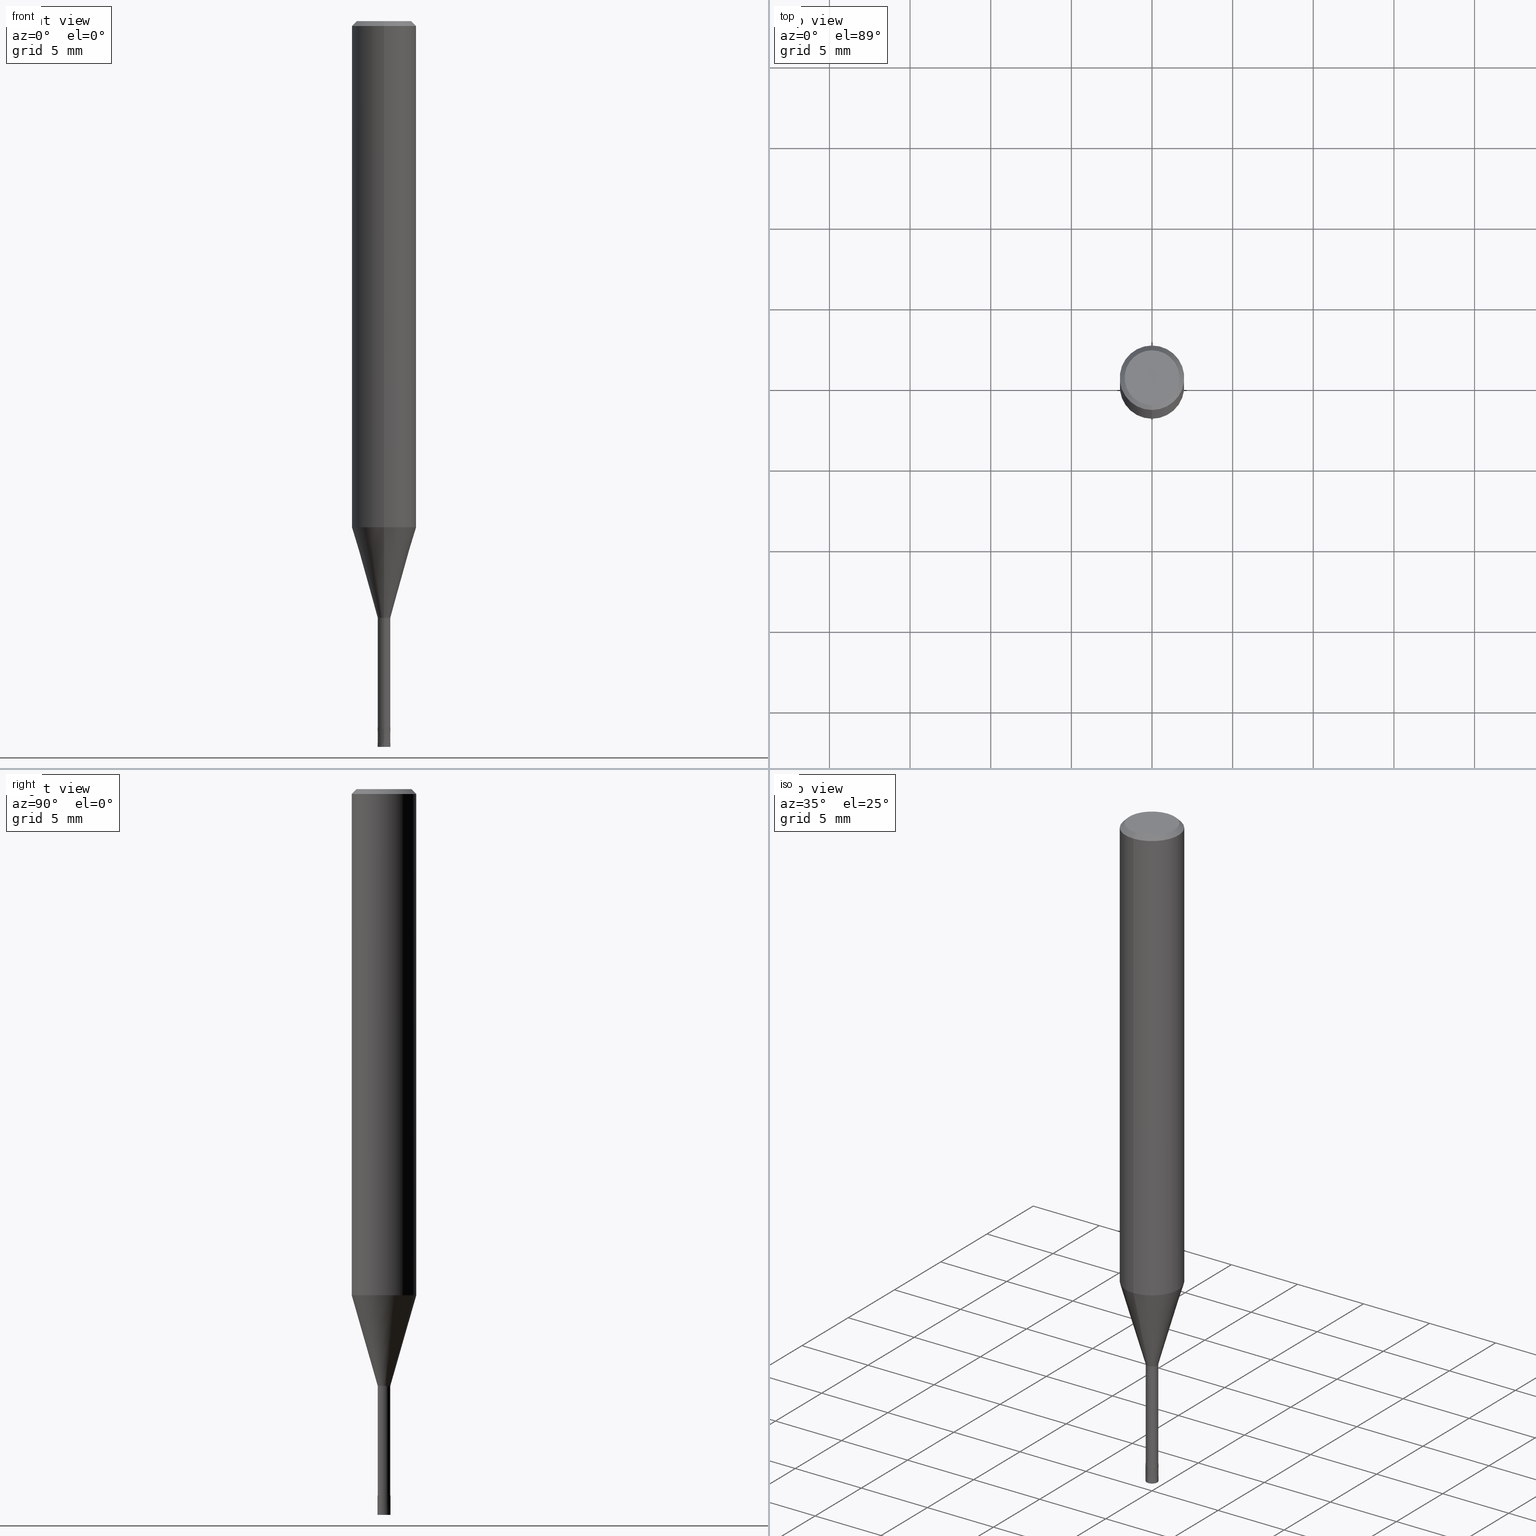
[diagram: canonical four-view strip — front | top / right | iso, engineering-drawing reading convention]
A machine part, canonical four-view strip (front | top / right | iso — engineering-drawing reading convention). The complete STEP part file that produces these views, byte-faithful:
ISO-10303-21;
HEADER;
FILE_DESCRIPTION(('no description'),'unknown implementation level');
FILE_NAME('HLS2008-080-Huellk.stp','  ',('CIMSOURCE GmbH'),('CADClick - KiM GmbH - www.kimweb.de'),'unknown preprocess','ACIS','unknown authorization');
FILE_SCHEMA(('automotive_design'));
ENDSEC;
DATA;
#1=MECHANICAL_DESIGN_GEOMETRIC_PRESENTATION_REPRESENTATION(' ',(#14,#15,#16,#17,#18,#19,#20,#21,#22,#23,#24,#25,#26,#27,#28,#29,#30,#31,#32,#33,#34,#35,#36,#37,#38,#39,#40,#41,#42,#43,#44,#45,#46,#47,#48,#49,#50,#51,#52,#53,#54,#55,#56,#57,#58,#59,#60,#61,#62,#63,#64,#65,#66,#67,#68,#69,#70,#71,#72),#10);
#2=PRODUCT_DEFINITION_CONTEXT('',#73,'design');
#3=APPLICATION_PROTOCOL_DEFINITION('INTERNATIONAL STANDARD','automotive_design',1994,#73);
#4=PRODUCT_CATEGORY_RELATIONSHIP('NONE','NONE',#74,#75);
#5=SHAPE_DEFINITION_REPRESENTATION(#76,#77);
#6=PRODUCT_DEFINITION_CONTEXT('',#78,'design');
#7=APPLICATION_PROTOCOL_DEFINITION('INTERNATIONAL STANDARD','automotive_design',1994,#78);
#8=PRODUCT_CATEGORY_RELATIONSHIP('NONE','NONE',#79,#80);
#9=SHAPE_DEFINITION_REPRESENTATION(#81,#82);
#10= (GEOMETRIC_REPRESENTATION_CONTEXT(3)GLOBAL_UNCERTAINTY_ASSIGNED_CONTEXT((#85))GLOBAL_UNIT_ASSIGNED_CONTEXT((#87,#88,#89))REPRESENTATION_CONTEXT('NONE','WORKSPACE'));
#14=STYLED_ITEM('',(#91),#92);
#15=STYLED_ITEM('',(#93),#94);
#16=STYLED_ITEM('',(#95),#96);
#17=STYLED_ITEM('',(#97),#98);
#18=STYLED_ITEM('',(#99),#100);
#19=STYLED_ITEM('',(#101),#102);
#20=STYLED_ITEM('',(#103),#104);
#21=STYLED_ITEM('',(#105),#106);
#22=STYLED_ITEM('',(#107),#108);
#23=STYLED_ITEM('',(#109),#110);
#24=STYLED_ITEM('',(#111),#112);
#25=STYLED_ITEM('',(#113),#114);
#26=STYLED_ITEM('',(#115),#116);
#27=STYLED_ITEM('',(#117),#118);
#28=STYLED_ITEM('',(#119),#120);
#29=STYLED_ITEM('',(#121),#122);
#30=STYLED_ITEM('',(#123),#124);
#31=STYLED_ITEM('',(#125),#126);
#32=STYLED_ITEM('',(#127),#128);
#33=STYLED_ITEM('',(#129),#130);
#34=STYLED_ITEM('',(#131),#132);
#35=STYLED_ITEM('',(#133),#134);
#36=STYLED_ITEM('',(#135),#136);
#37=STYLED_ITEM('',(#137),#138);
#38=STYLED_ITEM('',(#139),#140);
#39=STYLED_ITEM('',(#141),#142);
#40=STYLED_ITEM('',(#143),#144);
#41=STYLED_ITEM('',(#145),#146);
#42=STYLED_ITEM('',(#147),#148);
#43=STYLED_ITEM('',(#149),#150);
#44=STYLED_ITEM('',(#151),#152);
#45=STYLED_ITEM('',(#153),#154);
#46=STYLED_ITEM('',(#155),#156);
#47=STYLED_ITEM('',(#157),#158);
#48=STYLED_ITEM('',(#159),#160);
#49=STYLED_ITEM('',(#161),#162);
#50=STYLED_ITEM('',(#163),#164);
#51=STYLED_ITEM('',(#165),#166);
#52=STYLED_ITEM('',(#167),#168);
#53=STYLED_ITEM('',(#169),#170);
#54=STYLED_ITEM('',(#171),#172);
#55=STYLED_ITEM('',(#173),#174);
#56=STYLED_ITEM('',(#175),#176);
#57=STYLED_ITEM('',(#177),#178);
#58=STYLED_ITEM('',(#179),#180);
#59=STYLED_ITEM('',(#181),#182);
#60=STYLED_ITEM('',(#183),#184);
#61=STYLED_ITEM('',(#185),#186);
#62=STYLED_ITEM('',(#187),#188);
#63=STYLED_ITEM('',(#189),#190);
#64=STYLED_ITEM('',(#191),#192);
#65=STYLED_ITEM('',(#193),#194);
#66=STYLED_ITEM('',(#195),#196);
#67=STYLED_ITEM('',(#197),#198);
#68=STYLED_ITEM('',(#199),#200);
#69=STYLED_ITEM('',(#201),#202);
#70=STYLED_ITEM('',(#203),#204);
#71=STYLED_ITEM('',(#205),#206);
#72=STYLED_ITEM('',(#207),#208);
#73=APPLICATION_CONTEXT(' ');
#74=PRODUCT_CATEGORY('part','NONE');
#75=PRODUCT_RELATED_PRODUCT_CATEGORY('detail',' ',(#209));
#76=PRODUCT_DEFINITION_SHAPE('NONE','NONE',#210);
#77=ADVANCED_BREP_SHAPE_REPRESENTATION('1',(#92,#211),#10);
#78=APPLICATION_CONTEXT(' ');
#79=PRODUCT_CATEGORY('part','NONE');
#80=PRODUCT_RELATED_PRODUCT_CATEGORY('detail',' ',(#212));
#81=PRODUCT_DEFINITION_SHAPE('NONE','NONE',#213);
#82=ADVANCED_BREP_SHAPE_REPRESENTATION('2',(#172,#214),#10);
#85=UNCERTAINTY_MEASURE_WITH_UNIT(LENGTH_MEASURE(1.0E-006),#87,'','');
#87= (CONVERSION_BASED_UNIT('MILLIMETRE',#217)LENGTH_UNIT()NAMED_UNIT(#220));
#88= (NAMED_UNIT(#222)PLANE_ANGLE_UNIT()SI_UNIT($,.RADIAN.));
#89= (NAMED_UNIT(#222)SOLID_ANGLE_UNIT()SI_UNIT($,.STERADIAN.));
#91=PRESENTATION_STYLE_ASSIGNMENT((#228));
#92=MANIFOLD_SOLID_BREP('1',#229);
#93=PRESENTATION_STYLE_ASSIGNMENT((#230));
#94=EDGE_CURVE('',#102,#186,#231,.T.);
#95=PRESENTATION_STYLE_ASSIGNMENT((#232));
#96=ADVANCED_FACE('',(#233),#234,.T.);
#97=PRESENTATION_STYLE_ASSIGNMENT((#235));
#98=VERTEX_POINT('',#236);
#99=PRESENTATION_STYLE_ASSIGNMENT((#237));
#100=VERTEX_POINT('',#238);
#101=PRESENTATION_STYLE_ASSIGNMENT((#239));
#102=VERTEX_POINT('',#240);
#103=PRESENTATION_STYLE_ASSIGNMENT((#241));
#104=VERTEX_POINT('',#242);
#105=PRESENTATION_STYLE_ASSIGNMENT((#243));
#106=EDGE_CURVE('',#102,#140,#244,.T.);
#107=PRESENTATION_STYLE_ASSIGNMENT((#245));
#108=ADVANCED_FACE('',(#246),#247,.T.);
#109=PRESENTATION_STYLE_ASSIGNMENT((#248));
#110=VERTEX_POINT('',#249);
#111=PRESENTATION_STYLE_ASSIGNMENT((#250));
#112=ADVANCED_FACE('',(#251),#252,.T.);
#113=PRESENTATION_STYLE_ASSIGNMENT((#253));
#114=EDGE_CURVE('',#124,#170,#254,.T.);
#115=PRESENTATION_STYLE_ASSIGNMENT((#255));
#116=ADVANCED_FACE('',(#256),#257,.T.);
#117=PRESENTATION_STYLE_ASSIGNMENT((#258));
#118=EDGE_CURVE('',#206,#204,#259,.T.);
#119=PRESENTATION_STYLE_ASSIGNMENT((#260));
#120=EDGE_CURVE('',#148,#104,#261,.T.);
#121=PRESENTATION_STYLE_ASSIGNMENT((#262));
#122=EDGE_CURVE('',#204,#126,#263,.T.);
#123=PRESENTATION_STYLE_ASSIGNMENT((#264));
#124=VERTEX_POINT('',#265);
#125=PRESENTATION_STYLE_ASSIGNMENT((#266));
#126=VERTEX_POINT('',#267);
#127=PRESENTATION_STYLE_ASSIGNMENT((#268));
#128=ADVANCED_FACE('',(#269),#270,.T.);
#129=PRESENTATION_STYLE_ASSIGNMENT((#271));
#130=EDGE_CURVE('',#196,#156,#272,.T.);
#131=PRESENTATION_STYLE_ASSIGNMENT((#273));
#132=EDGE_CURVE('',#170,#124,#274,.T.);
#133=PRESENTATION_STYLE_ASSIGNMENT((#275));
#134=EDGE_CURVE('',#140,#148,#276,.T.);
#135=PRESENTATION_STYLE_ASSIGNMENT((#277));
#136=EDGE_CURVE('',#126,#194,#278,.T.);
#137=PRESENTATION_STYLE_ASSIGNMENT((#279));
#138=EDGE_CURVE('',#194,#206,#280,.T.);
#139=PRESENTATION_STYLE_ASSIGNMENT((#281));
#140=VERTEX_POINT('',#282);
#141=PRESENTATION_STYLE_ASSIGNMENT((#283));
#142=EDGE_CURVE('',#206,#194,#284,.T.);
#143=PRESENTATION_STYLE_ASSIGNMENT((#285));
#144=ADVANCED_FACE('',(#286),#287,.T.);
#145=PRESENTATION_STYLE_ASSIGNMENT((#288));
#146=ADVANCED_FACE('',(#289),#290,.T.);
#147=PRESENTATION_STYLE_ASSIGNMENT((#291));
#148=VERTEX_POINT('',#292);
#149=PRESENTATION_STYLE_ASSIGNMENT((#293));
#150=EDGE_CURVE('',#104,#148,#294,.T.);
#151=PRESENTATION_STYLE_ASSIGNMENT((#295));
#152=ADVANCED_FACE('',(#296),#297,.T.);
#153=PRESENTATION_STYLE_ASSIGNMENT((#298));
#154=ADVANCED_FACE('',(#299),#300,.T.);
#155=PRESENTATION_STYLE_ASSIGNMENT((#301));
#156=VERTEX_POINT('',#302);
#157=PRESENTATION_STYLE_ASSIGNMENT((#303));
#158=EDGE_CURVE('',#204,#156,#304,.T.);
#159=PRESENTATION_STYLE_ASSIGNMENT((#305));
#160=EDGE_CURVE('',#104,#98,#306,.T.);
#161=PRESENTATION_STYLE_ASSIGNMENT((#307));
#162=ADVANCED_FACE('',(#308),#309,.T.);
#163=PRESENTATION_STYLE_ASSIGNMENT((#310));
#164=EDGE_CURVE('',#156,#196,#311,.T.);
#165=PRESENTATION_STYLE_ASSIGNMENT((#312));
#166=EDGE_CURVE('',#186,#102,#313,.T.);
#167=PRESENTATION_STYLE_ASSIGNMENT((#314));
#168=ADVANCED_FACE('',(#315),#316,.T.);
#169=PRESENTATION_STYLE_ASSIGNMENT((#317));
#170=VERTEX_POINT('',#318);
#171=PRESENTATION_STYLE_ASSIGNMENT((#319));
#172=MANIFOLD_SOLID_BREP('2',#320);
#173=PRESENTATION_STYLE_ASSIGNMENT((#321));
#174=EDGE_CURVE('',#126,#204,#322,.T.);
#175=PRESENTATION_STYLE_ASSIGNMENT((#323));
#176=EDGE_CURVE('',#100,#110,#324,.T.);
#177=PRESENTATION_STYLE_ASSIGNMENT((#325));
#178=ADVANCED_FACE('',(#326,#327),#328,.T.);
#179=PRESENTATION_STYLE_ASSIGNMENT((#329));
#180=EDGE_CURVE('',#110,#100,#330,.T.);
#181=PRESENTATION_STYLE_ASSIGNMENT((#331));
#182=ADVANCED_FACE('',(#332),#333,.T.);
#183=PRESENTATION_STYLE_ASSIGNMENT((#334));
#184=EDGE_CURVE('',#98,#140,#335,.T.);
#185=PRESENTATION_STYLE_ASSIGNMENT((#336));
#186=VERTEX_POINT('',#337);
#187=PRESENTATION_STYLE_ASSIGNMENT((#338));
#188=ADVANCED_FACE('',(#339),#340,.T.);
#189=PRESENTATION_STYLE_ASSIGNMENT((#341));
#190=EDGE_CURVE('',#196,#126,#342,.T.);
#191=PRESENTATION_STYLE_ASSIGNMENT((#343));
#192=EDGE_CURVE('',#98,#186,#344,.T.);
#193=PRESENTATION_STYLE_ASSIGNMENT((#345));
#194=VERTEX_POINT('',#346);
#195=PRESENTATION_STYLE_ASSIGNMENT((#347));
#196=VERTEX_POINT('',#348);
#197=PRESENTATION_STYLE_ASSIGNMENT((#349));
#198=ADVANCED_FACE('',(#350),#351,.T.);
#199=PRESENTATION_STYLE_ASSIGNMENT((#352));
#200=EDGE_CURVE('',#124,#110,#353,.T.);
#201=PRESENTATION_STYLE_ASSIGNMENT((#354));
#202=EDGE_CURVE('',#100,#170,#355,.T.);
#203=PRESENTATION_STYLE_ASSIGNMENT((#356));
#204=VERTEX_POINT('',#357);
#205=PRESENTATION_STYLE_ASSIGNMENT((#358));
#206=VERTEX_POINT('',#359);
#207=PRESENTATION_STYLE_ASSIGNMENT((#360));
#208=EDGE_CURVE('',#140,#98,#361,.T.);
#209=PRODUCT('1','1','PART-1-DESC',(#362));
#210=PRODUCT_DEFINITION('NONE','NONE',#363,#2);
#211=AXIS2_PLACEMENT_3D('',#364,#365,#366);
#212=PRODUCT('2','2','PART-2-DESC',(#367));
#213=PRODUCT_DEFINITION('NONE','NONE',#368,#6);
#214=AXIS2_PLACEMENT_3D('',#369,#370,#371);
#217=LENGTH_MEASURE_WITH_UNIT(LENGTH_MEASURE(1.0),#372);
#220=DIMENSIONAL_EXPONENTS(1.0,0.0,0.0,0.0,0.0,0.0,0.0);
#222=DIMENSIONAL_EXPONENTS(0.0,0.0,0.0,0.0,0.0,0.0,0.0);
#228=SURFACE_STYLE_USAGE(.BOTH.,#373);
#229=CLOSED_SHELL('',(#108,#198,#152,#144,#178,#182,#128,#112,#116,#188,#162));
#230=CURVE_STYLE('',#374,POSITIVE_LENGTH_MEASURE(1.0E-006),#375);
#231=CIRCLE('',#376,0.38995);
#232=SURFACE_STYLE_USAGE(.BOTH.,#377);
#233=FACE_OUTER_BOUND('',#378,.T.);
#234=PLANE('',#379);
#235=POINT_STYLE(' ',#380,POSITIVE_LENGTH_MEASURE(1.0E-006),#381);
#236=CARTESIAN_POINT('',(0.0,0.38995,-37.0));
#237=POINT_STYLE(' ',#382,POSITIVE_LENGTH_MEASURE(1.0E-006),#383);
#238=CARTESIAN_POINT('',(0.0,0.3999,-43.8));
#239=POINT_STYLE(' ',#384,POSITIVE_LENGTH_MEASURE(1.0E-006),#385);
#240=CARTESIAN_POINT('',(4.77535247673036E-017,-0.38995,-43.8));
#241=POINT_STYLE(' ',#386,POSITIVE_LENGTH_MEASURE(1.0E-006),#387);
#242=CARTESIAN_POINT('',(0.0,1.99995,-31.385));
#243=CURVE_STYLE('',#388,POSITIVE_LENGTH_MEASURE(1.0E-006),#389);
#244=LINE('',#390,#391);
#245=SURFACE_STYLE_USAGE(.BOTH.,#392);
#246=FACE_OUTER_BOUND('',#393,.T.);
#247=CYLINDRICAL_SURFACE('',#394,0.38995);
#248=POINT_STYLE(' ',#395,POSITIVE_LENGTH_MEASURE(1.0E-006),#396);
#249=CARTESIAN_POINT('',(4.89720080893569E-017,-0.3999,-43.8));
#250=SURFACE_STYLE_USAGE(.BOTH.,#397);
#251=FACE_OUTER_BOUND('',#398,.T.);
#252=CYLINDRICAL_SURFACE('',#399,2.0);
#253=CURVE_STYLE('',#400,POSITIVE_LENGTH_MEASURE(1.0E-006),#401);
#254=CIRCLE('',#402,0.4);
#255=SURFACE_STYLE_USAGE(.BOTH.,#403);
#256=FACE_OUTER_BOUND('',#404,.T.);
#257=CONICAL_SURFACE('',#405,1.19495,0.279240281890545);
#258=CURVE_STYLE('',#406,POSITIVE_LENGTH_MEASURE(1.0E-006),#407);
#259=LINE('',#408,#409);
#260=CURVE_STYLE('',#410,POSITIVE_LENGTH_MEASURE(1.0E-006),#411);
#261=CIRCLE('',#412,1.99995);
#262=CURVE_STYLE('',#413,POSITIVE_LENGTH_MEASURE(1.0E-006),#414);
#263=CIRCLE('',#415,2.0);
#264=POINT_STYLE(' ',#416,POSITIVE_LENGTH_MEASURE(1.0E-006),#417);
#265=CARTESIAN_POINT('',(4.89842541528951E-017,-0.4,-45.0));
#266=POINT_STYLE(' ',#418,POSITIVE_LENGTH_MEASURE(1.0E-006),#419);
#267=CARTESIAN_POINT('',(0.0,2.0,-0.300000000000001));
#268=SURFACE_STYLE_USAGE(.BOTH.,#420);
#269=FACE_OUTER_BOUND('',#421,.T.);
#270=CONICAL_SURFACE('',#422,1.85,0.785398163397447);
#271=CURVE_STYLE('',#423,POSITIVE_LENGTH_MEASURE(1.0E-006),#424);
#272=CIRCLE('',#425,1.7);
#273=CURVE_STYLE('',#426,POSITIVE_LENGTH_MEASURE(1.0E-006),#427);
#274=CIRCLE('',#428,0.4);
#275=CURVE_STYLE('',#429,POSITIVE_LENGTH_MEASURE(1.0E-006),#430);
#276=LINE('',#431,#432);
#277=CURVE_STYLE('',#433,POSITIVE_LENGTH_MEASURE(1.0E-006),#434);
#278=LINE('',#435,#436);
#279=CURVE_STYLE('',#437,POSITIVE_LENGTH_MEASURE(1.0E-006),#438);
#280=CIRCLE('',#439,2.0);
#281=POINT_STYLE(' ',#440,POSITIVE_LENGTH_MEASURE(1.0E-006),#441);
#282=CARTESIAN_POINT('',(4.77535247673036E-017,-0.38995,-37.0));
#283=CURVE_STYLE('',#442,POSITIVE_LENGTH_MEASURE(1.0E-006),#443);
#284=CIRCLE('',#444,2.0);
#285=SURFACE_STYLE_USAGE(.BOTH.,#445);
#286=FACE_OUTER_BOUND('',#446,.T.);
#287=CONICAL_SURFACE('',#447,1.85,0.785398163397447);
#288=SURFACE_STYLE_USAGE(.BOTH.,#448);
#289=FACE_OUTER_BOUND('',#449,.T.);
#290=CONICAL_SURFACE('',#450,0.39995,8.33333331404692E-005);
#291=POINT_STYLE(' ',#451,POSITIVE_LENGTH_MEASURE(1.0E-006),#452);
#292=CARTESIAN_POINT('',(2.44915147732706E-016,-1.99995,-31.385));
#293=CURVE_STYLE('',#453,POSITIVE_LENGTH_MEASURE(1.0E-006),#454);
#294=CIRCLE('',#455,1.99995);
#295=SURFACE_STYLE_USAGE(.BOTH.,#456);
#296=FACE_OUTER_BOUND('',#457,.T.);
#297=CYLINDRICAL_SURFACE('',#458,2.0);
#298=SURFACE_STYLE_USAGE(.BOTH.,#459);
#299=FACE_OUTER_BOUND('',#460,.T.);
#300=CONICAL_SURFACE('',#461,0.39995,8.33333331404692E-005);
#301=POINT_STYLE(' ',#462,POSITIVE_LENGTH_MEASURE(1.0E-006),#463);
#302=CARTESIAN_POINT('',(2.08183080149804E-016,-1.7,0.0));
#303=CURVE_STYLE('',#464,POSITIVE_LENGTH_MEASURE(1.0E-006),#465);
#304=LINE('',#466,#467);
#305=CURVE_STYLE('',#468,POSITIVE_LENGTH_MEASURE(1.0E-006),#469);
#306=LINE('',#470,#471);
#307=SURFACE_STYLE_USAGE(.BOTH.,#472);
#308=FACE_OUTER_BOUND('',#473,.T.);
#309=PLANE('',#474);
#310=CURVE_STYLE('',#475,POSITIVE_LENGTH_MEASURE(1.0E-006),#476);
#311=CIRCLE('',#477,1.7);
#312=CURVE_STYLE('',#478,POSITIVE_LENGTH_MEASURE(1.0E-006),#479);
#313=CIRCLE('',#480,0.38995);
#314=SURFACE_STYLE_USAGE(.BOTH.,#481);
#315=FACE_OUTER_BOUND('',#482,.T.);
#316=PLANE('',#483);
#317=POINT_STYLE(' ',#484,POSITIVE_LENGTH_MEASURE(1.0E-006),#485);
#318=CARTESIAN_POINT('',(0.0,0.4,-45.0));
#319=SURFACE_STYLE_USAGE(.BOTH.,#486);
#320=CLOSED_SHELL('',(#146,#168,#154,#96));
#321=CURVE_STYLE('',#487,POSITIVE_LENGTH_MEASURE(1.0E-006),#488);
#322=CIRCLE('',#489,2.0);
#323=CURVE_STYLE('',#490,POSITIVE_LENGTH_MEASURE(1.0E-006),#491);
#324=CIRCLE('',#492,0.3999);
#325=SURFACE_STYLE_USAGE(.BOTH.,#493);
#326=FACE_OUTER_BOUND('',#494,.T.);
#327=FACE_BOUND('',#495,.T.);
#328=PLANE('',#496);
#329=CURVE_STYLE('',#497,POSITIVE_LENGTH_MEASURE(1.0E-006),#498);
#330=CIRCLE('',#499,0.3999);
#331=SURFACE_STYLE_USAGE(.BOTH.,#500);
#332=FACE_OUTER_BOUND('',#501,.T.);
#333=PLANE('',#502);
#334=CURVE_STYLE('',#503,POSITIVE_LENGTH_MEASURE(1.0E-006),#504);
#335=CIRCLE('',#505,0.38995);
#336=POINT_STYLE(' ',#506,POSITIVE_LENGTH_MEASURE(1.0E-006),#507);
#337=CARTESIAN_POINT('',(0.0,0.38995,-43.8));
#338=SURFACE_STYLE_USAGE(.BOTH.,#508);
#339=FACE_OUTER_BOUND('',#509,.T.);
#340=CYLINDRICAL_SURFACE('',#510,0.38995);
#341=CURVE_STYLE('',#511,POSITIVE_LENGTH_MEASURE(1.0E-006),#512);
#342=LINE('',#513,#514);
#343=CURVE_STYLE('',#515,POSITIVE_LENGTH_MEASURE(1.0E-006),#516);
#344=LINE('',#517,#518);
#345=POINT_STYLE(' ',#519,POSITIVE_LENGTH_MEASURE(1.0E-006),#520);
#346=CARTESIAN_POINT('',(0.0,2.0,-31.385));
#347=POINT_STYLE(' ',#521,POSITIVE_LENGTH_MEASURE(1.0E-006),#522);
#348=CARTESIAN_POINT('',(0.0,1.7,0.0));
#349=SURFACE_STYLE_USAGE(.BOTH.,#523);
#350=FACE_OUTER_BOUND('',#524,.T.);
#351=CONICAL_SURFACE('',#525,1.19495,0.279240281890545);
#352=CURVE_STYLE('',#526,POSITIVE_LENGTH_MEASURE(1.0E-006),#527);
#353=LINE('',#528,#529);
#354=CURVE_STYLE('',#530,POSITIVE_LENGTH_MEASURE(1.0E-006),#531);
#355=LINE('',#532,#533);
#356=POINT_STYLE(' ',#534,POSITIVE_LENGTH_MEASURE(1.0E-006),#535);
#357=CARTESIAN_POINT('',(2.44921270764475E-016,-2.0,-0.300000000000001));
#358=POINT_STYLE(' ',#536,POSITIVE_LENGTH_MEASURE(1.0E-006),#537);
#359=CARTESIAN_POINT('',(2.44921270764475E-016,-2.0,-31.385));
#360=CURVE_STYLE('',#538,POSITIVE_LENGTH_MEASURE(1.0E-006),#539);
#361=CIRCLE('',#540,0.38995);
#362=PRODUCT_CONTEXT('',#73,'mechanical');
#363=PRODUCT_DEFINITION_FORMATION_WITH_SPECIFIED_SOURCE(' ','NONE',#209,.NOT_KNOWN.);
#364=CARTESIAN_POINT('',(0.0,0.0,0.0));
#365=DIRECTION('',(0.0,0.0,1.0));
#366=DIRECTION('',(1.0,0.0,0.0));
#367=PRODUCT_CONTEXT('',#78,'mechanical');
#368=PRODUCT_DEFINITION_FORMATION_WITH_SPECIFIED_SOURCE(' ','NONE',#212,.NOT_KNOWN.);
#369=CARTESIAN_POINT('',(0.0,0.0,0.0));
#370=DIRECTION('',(0.0,0.0,1.0));
#371=DIRECTION('',(1.0,0.0,0.0));
#372= (NAMED_UNIT(#220)LENGTH_UNIT()SI_UNIT(.MILLI.,.METRE.));
#373=SURFACE_SIDE_STYLE('',(#542));
#374=DRAUGHTING_PRE_DEFINED_CURVE_FONT('continuous');
#375=COLOUR_RGB('',0.498039215803146,0.498039215803146,0.498039215803146);
#376=AXIS2_PLACEMENT_3D('',#543,#544,#545);
#377=SURFACE_SIDE_STYLE('',(#546));
#378=EDGE_LOOP('',(#547,#548));
#379=AXIS2_PLACEMENT_3D('',#549,#550,#551);
#380=PRE_DEFINED_MARKER('');
#381=COLOUR_RGB('',0.498039215803146,0.498039215803146,0.498039215803146);
#382=PRE_DEFINED_MARKER('');
#383=COLOUR_RGB('',0.800000011920929,0.800000011920929,0.800000011920929);
#384=PRE_DEFINED_MARKER('');
#385=COLOUR_RGB('',0.498039215803146,0.498039215803146,0.498039215803146);
#386=PRE_DEFINED_MARKER('');
#387=COLOUR_RGB('',0.498039215803146,0.498039215803146,0.498039215803146);
#388=DRAUGHTING_PRE_DEFINED_CURVE_FONT('continuous');
#389=COLOUR_RGB('',0.498039215803146,0.498039215803146,0.498039215803146);
#390=CARTESIAN_POINT('',(4.77535247673036E-017,-0.38995,-40.4));
#391=VECTOR('',#552,1.0);
#392=SURFACE_SIDE_STYLE('',(#553));
#393=EDGE_LOOP('',(#554,#555,#556,#557));
#394=AXIS2_PLACEMENT_3D('',#558,#559,#560);
#395=PRE_DEFINED_MARKER('');
#396=COLOUR_RGB('',0.800000011920929,0.800000011920929,0.800000011920929);
#397=SURFACE_SIDE_STYLE('',(#561));
#398=EDGE_LOOP('',(#562,#563,#564,#565));
#399=AXIS2_PLACEMENT_3D('',#566,#567,#568);
#400=DRAUGHTING_PRE_DEFINED_CURVE_FONT('continuous');
#401=COLOUR_RGB('',0.800000011920929,0.800000011920929,0.800000011920929);
#402=AXIS2_PLACEMENT_3D('',#569,#570,#571);
#403=SURFACE_SIDE_STYLE('',(#572));
#404=EDGE_LOOP('',(#573,#574,#575,#576));
#405=AXIS2_PLACEMENT_3D('',#577,#578,#579);
#406=DRAUGHTING_PRE_DEFINED_CURVE_FONT('continuous');
#407=COLOUR_RGB('',0.498039215803146,0.498039215803146,0.498039215803146);
#408=CARTESIAN_POINT('',(2.44921270764475E-016,-2.0,-15.8425));
#409=VECTOR('',#580,1.0);
#410=DRAUGHTING_PRE_DEFINED_CURVE_FONT('continuous');
#411=COLOUR_RGB('',0.498039215803146,0.498039215803146,0.498039215803146);
#412=AXIS2_PLACEMENT_3D('',#581,#582,#583);
#413=DRAUGHTING_PRE_DEFINED_CURVE_FONT('continuous');
#414=COLOUR_RGB('',0.498039215803146,0.498039215803146,0.498039215803146);
#415=AXIS2_PLACEMENT_3D('',#584,#585,#586);
#416=PRE_DEFINED_MARKER('');
#417=COLOUR_RGB('',0.800000011920929,0.800000011920929,0.800000011920929);
#418=PRE_DEFINED_MARKER('');
#419=COLOUR_RGB('',0.498039215803146,0.498039215803146,0.498039215803146);
#420=SURFACE_SIDE_STYLE('',(#587));
#421=EDGE_LOOP('',(#588,#589,#590,#591));
#422=AXIS2_PLACEMENT_3D('',#592,#593,#594);
#423=DRAUGHTING_PRE_DEFINED_CURVE_FONT('continuous');
#424=COLOUR_RGB('',0.498039215803146,0.498039215803146,0.498039215803146);
#425=AXIS2_PLACEMENT_3D('',#595,#596,#597);
#426=DRAUGHTING_PRE_DEFINED_CURVE_FONT('continuous');
#427=COLOUR_RGB('',0.800000011920929,0.800000011920929,0.800000011920929);
#428=AXIS2_PLACEMENT_3D('',#598,#599,#600);
#429=DRAUGHTING_PRE_DEFINED_CURVE_FONT('continuous');
#430=COLOUR_RGB('',0.498039215803146,0.498039215803146,0.498039215803146);
#431=CARTESIAN_POINT('',(1.46334336250005E-016,-1.19495,-34.1925));
#432=VECTOR('',#601,1.0);
#433=DRAUGHTING_PRE_DEFINED_CURVE_FONT('continuous');
#434=COLOUR_RGB('',0.498039215803146,0.498039215803146,0.498039215803146);
#435=CARTESIAN_POINT('',(-2.44921270764475E-016,2.0,-15.8425));
#436=VECTOR('',#602,1.0);
#437=DRAUGHTING_PRE_DEFINED_CURVE_FONT('continuous');
#438=COLOUR_RGB('',0.498039215803146,0.498039215803146,0.498039215803146);
#439=AXIS2_PLACEMENT_3D('',#603,#604,#605);
#440=PRE_DEFINED_MARKER('');
#441=COLOUR_RGB('',0.498039215803146,0.498039215803146,0.498039215803146);
#442=DRAUGHTING_PRE_DEFINED_CURVE_FONT('continuous');
#443=COLOUR_RGB('',0.498039215803146,0.498039215803146,0.498039215803146);
#444=AXIS2_PLACEMENT_3D('',#606,#607,#608);
#445=SURFACE_SIDE_STYLE('',(#609));
#446=EDGE_LOOP('',(#610,#611,#612,#613));
#447=AXIS2_PLACEMENT_3D('',#614,#615,#616);
#448=SURFACE_SIDE_STYLE('',(#617));
#449=EDGE_LOOP('',(#618,#619,#620,#621));
#450=AXIS2_PLACEMENT_3D('',#622,#623,#624);
#451=PRE_DEFINED_MARKER('');
#452=COLOUR_RGB('',0.498039215803146,0.498039215803146,0.498039215803146);
#453=DRAUGHTING_PRE_DEFINED_CURVE_FONT('continuous');
#454=COLOUR_RGB('',0.498039215803146,0.498039215803146,0.498039215803146);
#455=AXIS2_PLACEMENT_3D('',#625,#626,#627);
#456=SURFACE_SIDE_STYLE('',(#628));
#457=EDGE_LOOP('',(#629,#630,#631,#632));
#458=AXIS2_PLACEMENT_3D('',#633,#634,#635);
#459=SURFACE_SIDE_STYLE('',(#636));
#460=EDGE_LOOP('',(#637,#638,#639,#640));
#461=AXIS2_PLACEMENT_3D('',#641,#642,#643);
#462=PRE_DEFINED_MARKER('');
#463=COLOUR_RGB('',0.498039215803146,0.498039215803146,0.498039215803146);
#464=DRAUGHTING_PRE_DEFINED_CURVE_FONT('continuous');
#465=COLOUR_RGB('',0.498039215803146,0.498039215803146,0.498039215803146);
#466=CARTESIAN_POINT('',(2.2655217545714E-016,-1.85,-0.150000000000002));
#467=VECTOR('',#644,1.0);
#468=DRAUGHTING_PRE_DEFINED_CURVE_FONT('continuous');
#469=COLOUR_RGB('',0.498039215803146,0.498039215803146,0.498039215803146);
#470=CARTESIAN_POINT('',(-1.46334336250005E-016,1.19495,-34.1925));
#471=VECTOR('',#645,1.0);
#472=SURFACE_SIDE_STYLE('',(#646));
#473=EDGE_LOOP('',(#647,#648));
#474=AXIS2_PLACEMENT_3D('',#649,#650,#651);
#475=DRAUGHTING_PRE_DEFINED_CURVE_FONT('continuous');
#476=COLOUR_RGB('',0.498039215803146,0.498039215803146,0.498039215803146);
#477=AXIS2_PLACEMENT_3D('',#652,#653,#654);
#478=DRAUGHTING_PRE_DEFINED_CURVE_FONT('continuous');
#479=COLOUR_RGB('',0.498039215803146,0.498039215803146,0.498039215803146);
#480=AXIS2_PLACEMENT_3D('',#655,#656,#657);
#481=SURFACE_SIDE_STYLE('',(#658));
#482=EDGE_LOOP('',(#659,#660));
#483=AXIS2_PLACEMENT_3D('',#661,#662,#663);
#484=PRE_DEFINED_MARKER('');
#485=COLOUR_RGB('',0.800000011920929,0.800000011920929,0.800000011920929);
#486=SURFACE_SIDE_STYLE('',(#664));
#487=DRAUGHTING_PRE_DEFINED_CURVE_FONT('continuous');
#488=COLOUR_RGB('',0.498039215803146,0.498039215803146,0.498039215803146);
#489=AXIS2_PLACEMENT_3D('',#665,#666,#667);
#490=DRAUGHTING_PRE_DEFINED_CURVE_FONT('continuous');
#491=COLOUR_RGB('',0.800000011920929,0.800000011920929,0.800000011920929);
#492=AXIS2_PLACEMENT_3D('',#668,#669,#670);
#493=SURFACE_SIDE_STYLE('',(#671));
#494=EDGE_LOOP('',(#672,#673));
#495=EDGE_LOOP('',(#674,#675));
#496=AXIS2_PLACEMENT_3D('',#676,#677,#678);
#497=DRAUGHTING_PRE_DEFINED_CURVE_FONT('continuous');
#498=COLOUR_RGB('',0.800000011920929,0.800000011920929,0.800000011920929);
#499=AXIS2_PLACEMENT_3D('',#679,#680,#681);
#500=SURFACE_SIDE_STYLE('',(#682));
#501=EDGE_LOOP('',(#683,#684));
#502=AXIS2_PLACEMENT_3D('',#685,#686,#687);
#503=DRAUGHTING_PRE_DEFINED_CURVE_FONT('continuous');
#504=COLOUR_RGB('',0.498039215803146,0.498039215803146,0.498039215803146);
#505=AXIS2_PLACEMENT_3D('',#688,#689,#690);
#506=PRE_DEFINED_MARKER('');
#507=COLOUR_RGB('',0.498039215803146,0.498039215803146,0.498039215803146);
#508=SURFACE_SIDE_STYLE('',(#691));
#509=EDGE_LOOP('',(#692,#693,#694,#695));
#510=AXIS2_PLACEMENT_3D('',#696,#697,#698);
#511=DRAUGHTING_PRE_DEFINED_CURVE_FONT('continuous');
#512=COLOUR_RGB('',0.498039215803146,0.498039215803146,0.498039215803146);
#513=CARTESIAN_POINT('',(-2.2655217545714E-016,1.85,-0.150000000000002));
#514=VECTOR('',#699,1.0);
#515=DRAUGHTING_PRE_DEFINED_CURVE_FONT('continuous');
#516=COLOUR_RGB('',0.498039215803146,0.498039215803146,0.498039215803146);
#517=CARTESIAN_POINT('',(-4.77535247673036E-017,0.38995,-40.4));
#518=VECTOR('',#700,1.0);
#519=PRE_DEFINED_MARKER('');
#520=COLOUR_RGB('',0.498039215803146,0.498039215803146,0.498039215803146);
#521=PRE_DEFINED_MARKER('');
#522=COLOUR_RGB('',0.498039215803146,0.498039215803146,0.498039215803146);
#523=SURFACE_SIDE_STYLE('',(#701));
#524=EDGE_LOOP('',(#702,#703,#704,#705));
#525=AXIS2_PLACEMENT_3D('',#706,#707,#708);
#526=DRAUGHTING_PRE_DEFINED_CURVE_FONT('continuous');
#527=COLOUR_RGB('',0.800000011920929,0.800000011920929,0.800000011920929);
#528=CARTESIAN_POINT('',(4.8978131121126E-017,-0.39995,-44.4));
#529=VECTOR('',#709,1.0);
#530=DRAUGHTING_PRE_DEFINED_CURVE_FONT('continuous');
#531=COLOUR_RGB('',0.800000011920929,0.800000011920929,0.800000011920929);
#532=CARTESIAN_POINT('',(-4.8978131121126E-017,0.39995,-44.4));
#533=VECTOR('',#710,1.0);
#534=PRE_DEFINED_MARKER('');
#535=COLOUR_RGB('',0.498039215803146,0.498039215803146,0.498039215803146);
#536=PRE_DEFINED_MARKER('');
#537=COLOUR_RGB('',0.498039215803146,0.498039215803146,0.498039215803146);
#538=DRAUGHTING_PRE_DEFINED_CURVE_FONT('continuous');
#539=COLOUR_RGB('',0.498039215803146,0.498039215803146,0.498039215803146);
#540=AXIS2_PLACEMENT_3D('',#711,#712,#713);
#542=SURFACE_STYLE_FILL_AREA(#714);
#543=CARTESIAN_POINT('',(0.0,0.0,-43.8));
#544=DIRECTION('',(0.0,0.0,-1.0));
#545=DIRECTION('',(0.0,1.0,0.0));
#546=SURFACE_STYLE_FILL_AREA(#715);
#547=ORIENTED_EDGE('',*,*,#132,.T.);
#548=ORIENTED_EDGE('',*,*,#114,.T.);
#549=CARTESIAN_POINT('',(0.0,0.1975,-45.0));
#550=DIRECTION('',(0.0,0.0,-1.0));
#551=DIRECTION('',(0.0,1.0,0.0));
#552=DIRECTION('',(-0.0,-0.0,1.0));
#553=SURFACE_STYLE_FILL_AREA(#716);
#554=ORIENTED_EDGE('',*,*,#192,.F.);
#555=ORIENTED_EDGE('',*,*,#184,.T.);
#556=ORIENTED_EDGE('',*,*,#106,.F.);
#557=ORIENTED_EDGE('',*,*,#166,.F.);
#558=CARTESIAN_POINT('',(0.0,0.0,-40.4));
#559=DIRECTION('',(-0.0,-0.0,1.0));
#560=DIRECTION('',(0.0,1.0,0.0));
#561=SURFACE_STYLE_FILL_AREA(#717);
#562=ORIENTED_EDGE('',*,*,#136,.T.);
#563=ORIENTED_EDGE('',*,*,#142,.F.);
#564=ORIENTED_EDGE('',*,*,#118,.T.);
#565=ORIENTED_EDGE('',*,*,#122,.T.);
#566=CARTESIAN_POINT('',(0.0,0.0,-15.8425));
#567=DIRECTION('',(-0.0,-0.0,1.0));
#568=DIRECTION('',(0.0,1.0,0.0));
#569=CARTESIAN_POINT('',(0.0,0.0,-45.0));
#570=DIRECTION('',(0.0,0.0,-1.0));
#571=DIRECTION('',(0.0,1.0,0.0));
#572=SURFACE_STYLE_FILL_AREA(#718);
#573=ORIENTED_EDGE('',*,*,#160,.T.);
#574=ORIENTED_EDGE('',*,*,#208,.F.);
#575=ORIENTED_EDGE('',*,*,#134,.T.);
#576=ORIENTED_EDGE('',*,*,#120,.T.);
#577=CARTESIAN_POINT('',(0.0,0.0,-34.1925));
#578=DIRECTION('',(-0.0,-0.0,1.0));
#579=DIRECTION('',(0.0,1.0,0.0));
#580=DIRECTION('',(-0.0,-0.0,1.0));
#581=CARTESIAN_POINT('',(0.0,0.0,-31.385));
#582=DIRECTION('',(0.0,0.0,-1.0));
#583=DIRECTION('',(0.0,1.0,0.0));
#584=CARTESIAN_POINT('',(0.0,0.0,-0.300000000000001));
#585=DIRECTION('',(0.0,0.0,-1.0));
#586=DIRECTION('',(0.0,1.0,0.0));
#587=SURFACE_STYLE_FILL_AREA(#719);
#588=ORIENTED_EDGE('',*,*,#190,.T.);
#589=ORIENTED_EDGE('',*,*,#122,.F.);
#590=ORIENTED_EDGE('',*,*,#158,.T.);
#591=ORIENTED_EDGE('',*,*,#164,.T.);
#592=CARTESIAN_POINT('',(0.0,0.0,-0.150000000000002));
#593=DIRECTION('',(0.0,-0.0,-1.0));
#594=DIRECTION('',(0.0,1.0,0.0));
#595=CARTESIAN_POINT('',(0.0,0.0,0.0));
#596=DIRECTION('',(0.0,0.0,-1.0));
#597=DIRECTION('',(0.0,1.0,0.0));
#598=CARTESIAN_POINT('',(0.0,0.0,-45.0));
#599=DIRECTION('',(0.0,0.0,-1.0));
#600=DIRECTION('',(0.0,1.0,0.0));
#601=DIRECTION('',(3.37532662235176E-017,-0.275625437661361,0.961265113334497));
#602=DIRECTION('',(0.0,0.0,-1.0));
#603=CARTESIAN_POINT('',(0.0,0.0,-31.385));
#604=DIRECTION('',(0.0,0.0,-1.0));
#605=DIRECTION('',(0.0,1.0,0.0));
#606=CARTESIAN_POINT('',(0.0,0.0,-31.385));
#607=DIRECTION('',(0.0,0.0,-1.0));
#608=DIRECTION('',(0.0,1.0,0.0));
#609=SURFACE_STYLE_FILL_AREA(#720);
#610=ORIENTED_EDGE('',*,*,#190,.F.);
#611=ORIENTED_EDGE('',*,*,#130,.T.);
#612=ORIENTED_EDGE('',*,*,#158,.F.);
#613=ORIENTED_EDGE('',*,*,#174,.F.);
#614=CARTESIAN_POINT('',(0.0,0.0,-0.150000000000002));
#615=DIRECTION('',(0.0,-0.0,-1.0));
#616=DIRECTION('',(0.0,1.0,0.0));
#617=SURFACE_STYLE_FILL_AREA(#721);
#618=ORIENTED_EDGE('',*,*,#202,.F.);
#619=ORIENTED_EDGE('',*,*,#176,.T.);
#620=ORIENTED_EDGE('',*,*,#200,.F.);
#621=ORIENTED_EDGE('',*,*,#132,.F.);
#622=CARTESIAN_POINT('',(0.0,0.0,-44.4));
#623=DIRECTION('',(0.0,-0.0,-1.0));
#624=DIRECTION('',(0.0,1.0,0.0));
#625=CARTESIAN_POINT('',(0.0,0.0,-31.385));
#626=DIRECTION('',(0.0,0.0,-1.0));
#627=DIRECTION('',(0.0,1.0,0.0));
#628=SURFACE_STYLE_FILL_AREA(#722);
#629=ORIENTED_EDGE('',*,*,#136,.F.);
#630=ORIENTED_EDGE('',*,*,#174,.T.);
#631=ORIENTED_EDGE('',*,*,#118,.F.);
#632=ORIENTED_EDGE('',*,*,#138,.F.);
#633=CARTESIAN_POINT('',(0.0,0.0,-15.8425));
#634=DIRECTION('',(-0.0,-0.0,1.0));
#635=DIRECTION('',(0.0,1.0,0.0));
#636=SURFACE_STYLE_FILL_AREA(#723);
#637=ORIENTED_EDGE('',*,*,#202,.T.);
#638=ORIENTED_EDGE('',*,*,#114,.F.);
#639=ORIENTED_EDGE('',*,*,#200,.T.);
#640=ORIENTED_EDGE('',*,*,#180,.T.);
#641=CARTESIAN_POINT('',(0.0,0.0,-44.4));
#642=DIRECTION('',(0.0,-0.0,-1.0));
#643=DIRECTION('',(0.0,1.0,0.0));
#644=DIRECTION('',(-8.65927457071934E-017,0.707106781186546,0.707106781186549));
#645=DIRECTION('',(3.37532662235176E-017,-0.275625437661361,-0.961265113334497));
#646=SURFACE_STYLE_FILL_AREA(#724);
#647=ORIENTED_EDGE('',*,*,#166,.T.);
#648=ORIENTED_EDGE('',*,*,#94,.T.);
#649=CARTESIAN_POINT('',(0.0,0.194975,-43.8));
#650=DIRECTION('',(0.0,0.0,-1.0));
#651=DIRECTION('',(0.0,1.0,0.0));
#652=CARTESIAN_POINT('',(0.0,0.0,0.0));
#653=DIRECTION('',(0.0,0.0,-1.0));
#654=DIRECTION('',(0.0,1.0,0.0));
#655=CARTESIAN_POINT('',(0.0,0.0,-43.8));
#656=DIRECTION('',(0.0,0.0,-1.0));
#657=DIRECTION('',(0.0,1.0,0.0));
#658=SURFACE_STYLE_FILL_AREA(#725);
#659=ORIENTED_EDGE('',*,*,#176,.F.);
#660=ORIENTED_EDGE('',*,*,#180,.F.);
#661=CARTESIAN_POINT('',(0.0,0.19995,-43.8));
#662=DIRECTION('',(-0.0,0.0,1.0));
#663=DIRECTION('',(0.0,-1.0,0.0));
#664=SURFACE_STYLE_FILL_AREA(#726);
#665=CARTESIAN_POINT('',(0.0,0.0,-0.300000000000001));
#666=DIRECTION('',(0.0,0.0,-1.0));
#667=DIRECTION('',(0.0,1.0,0.0));
#668=CARTESIAN_POINT('',(0.0,0.0,-43.8));
#669=DIRECTION('',(0.0,0.0,-1.0));
#670=DIRECTION('',(0.0,1.0,0.0));
#671=SURFACE_STYLE_FILL_AREA(#727);
#672=ORIENTED_EDGE('',*,*,#138,.T.);
#673=ORIENTED_EDGE('',*,*,#142,.T.);
#674=ORIENTED_EDGE('',*,*,#150,.F.);
#675=ORIENTED_EDGE('',*,*,#120,.F.);
#676=CARTESIAN_POINT('',(0.0,1.0,-31.385));
#677=DIRECTION('',(0.0,0.0,-1.0));
#678=DIRECTION('',(0.0,1.0,0.0));
#679=CARTESIAN_POINT('',(0.0,0.0,-43.8));
#680=DIRECTION('',(0.0,0.0,-1.0));
#681=DIRECTION('',(0.0,1.0,0.0));
#682=SURFACE_STYLE_FILL_AREA(#728);
#683=ORIENTED_EDGE('',*,*,#130,.F.);
#684=ORIENTED_EDGE('',*,*,#164,.F.);
#685=CARTESIAN_POINT('',(0.0,0.85,0.0));
#686=DIRECTION('',(-0.0,0.0,1.0));
#687=DIRECTION('',(0.0,-1.0,0.0));
#688=CARTESIAN_POINT('',(0.0,0.0,-37.0));
#689=DIRECTION('',(0.0,0.0,-1.0));
#690=DIRECTION('',(0.0,1.0,0.0));
#691=SURFACE_STYLE_FILL_AREA(#729);
#692=ORIENTED_EDGE('',*,*,#192,.T.);
#693=ORIENTED_EDGE('',*,*,#94,.F.);
#694=ORIENTED_EDGE('',*,*,#106,.T.);
#695=ORIENTED_EDGE('',*,*,#208,.T.);
#696=CARTESIAN_POINT('',(0.0,0.0,-40.4));
#697=DIRECTION('',(-0.0,-0.0,1.0));
#698=DIRECTION('',(0.0,1.0,0.0));
#699=DIRECTION('',(-8.65927457071934E-017,0.707106781186546,-0.707106781186549));
#700=DIRECTION('',(0.0,0.0,-1.0));
#701=SURFACE_STYLE_FILL_AREA(#730);
#702=ORIENTED_EDGE('',*,*,#160,.F.);
#703=ORIENTED_EDGE('',*,*,#150,.T.);
#704=ORIENTED_EDGE('',*,*,#134,.F.);
#705=ORIENTED_EDGE('',*,*,#184,.F.);
#706=CARTESIAN_POINT('',(0.0,0.0,-34.1925));
#707=DIRECTION('',(-0.0,-0.0,1.0));
#708=DIRECTION('',(0.0,1.0,0.0));
#709=DIRECTION('',(-1.02050529130901E-020,8.33333330440186E-005,0.999999996527778));
#710=DIRECTION('',(-1.02050529130901E-020,8.33333330440186E-005,-0.999999996527778));
#711=CARTESIAN_POINT('',(0.0,0.0,-37.0));
#712=DIRECTION('',(0.0,0.0,-1.0));
#713=DIRECTION('',(0.0,1.0,0.0));
#714=FILL_AREA_STYLE('',(#731));
#715=FILL_AREA_STYLE('',(#732));
#716=FILL_AREA_STYLE('',(#733));
#717=FILL_AREA_STYLE('',(#734));
#718=FILL_AREA_STYLE('',(#735));
#719=FILL_AREA_STYLE('',(#736));
#720=FILL_AREA_STYLE('',(#737));
#721=FILL_AREA_STYLE('',(#738));
#722=FILL_AREA_STYLE('',(#739));
#723=FILL_AREA_STYLE('',(#740));
#724=FILL_AREA_STYLE('',(#741));
#725=FILL_AREA_STYLE('',(#742));
#726=FILL_AREA_STYLE('',(#743));
#727=FILL_AREA_STYLE('',(#744));
#728=FILL_AREA_STYLE('',(#745));
#729=FILL_AREA_STYLE('',(#746));
#730=FILL_AREA_STYLE('',(#747));
#731=FILL_AREA_STYLE_COLOUR('',#748);
#732=FILL_AREA_STYLE_COLOUR('',#749);
#733=FILL_AREA_STYLE_COLOUR('',#750);
#734=FILL_AREA_STYLE_COLOUR('',#751);
#735=FILL_AREA_STYLE_COLOUR('',#752);
#736=FILL_AREA_STYLE_COLOUR('',#753);
#737=FILL_AREA_STYLE_COLOUR('',#754);
#738=FILL_AREA_STYLE_COLOUR('',#755);
#739=FILL_AREA_STYLE_COLOUR('',#756);
#740=FILL_AREA_STYLE_COLOUR('',#757);
#741=FILL_AREA_STYLE_COLOUR('',#758);
#742=FILL_AREA_STYLE_COLOUR('',#759);
#743=FILL_AREA_STYLE_COLOUR('',#760);
#744=FILL_AREA_STYLE_COLOUR('',#761);
#745=FILL_AREA_STYLE_COLOUR('',#762);
#746=FILL_AREA_STYLE_COLOUR('',#763);
#747=FILL_AREA_STYLE_COLOUR('',#764);
#748=COLOUR_RGB('',0.498039215803146,0.498039215803146,0.498039215803146);
#749=COLOUR_RGB('',0.800000011920929,0.800000011920929,0.800000011920929);
#750=COLOUR_RGB('',0.498039215803146,0.498039215803146,0.498039215803146);
#751=COLOUR_RGB('',0.498039215803146,0.498039215803146,0.498039215803146);
#752=COLOUR_RGB('',0.498039215803146,0.498039215803146,0.498039215803146);
#753=COLOUR_RGB('',0.498039215803146,0.498039215803146,0.498039215803146);
#754=COLOUR_RGB('',0.498039215803146,0.498039215803146,0.498039215803146);
#755=COLOUR_RGB('',0.800000011920929,0.800000011920929,0.800000011920929);
#756=COLOUR_RGB('',0.498039215803146,0.498039215803146,0.498039215803146);
#757=COLOUR_RGB('',0.800000011920929,0.800000011920929,0.800000011920929);
#758=COLOUR_RGB('',0.498039215803146,0.498039215803146,0.498039215803146);
#759=COLOUR_RGB('',0.800000011920929,0.800000011920929,0.800000011920929);
#760=COLOUR_RGB('',0.800000011920929,0.800000011920929,0.800000011920929);
#761=COLOUR_RGB('',0.498039215803146,0.498039215803146,0.498039215803146);
#762=COLOUR_RGB('',0.498039215803146,0.498039215803146,0.498039215803146);
#763=COLOUR_RGB('',0.498039215803146,0.498039215803146,0.498039215803146);
#764=COLOUR_RGB('',0.498039215803146,0.498039215803146,0.498039215803146);
#765=AXIS2_PLACEMENT_3D('PCS',#766,#767,#768);
#766=CARTESIAN_POINT('',(0.0,0.0,0.0));
#767=DIRECTION('',(0.0,0.0,1.0));
#768=DIRECTION('',(1.0,0.0,0.0));
#769=AXIS2_PLACEMENT_3D('CIP',#770,#771,#772);
#770=CARTESIAN_POINT('',(0.0,0.0,-45.0));
#771=DIRECTION('',(0.0,0.0,1.0));
#772=DIRECTION('',(1.0,0.0,0.0));
#773=AXIS2_PLACEMENT_3D('CRP',#774,#775,#776);
#774=CARTESIAN_POINT('',(-0.4,0.0,-45.0));
#775=DIRECTION('',(0.0,0.0,1.0));
#776=DIRECTION('',(1.0,0.0,0.0));
#777=AXIS2_PLACEMENT_3D('MCS',#778,#779,#780);
#778=CARTESIAN_POINT('',(0.0,0.0,-31.385));
#779=DIRECTION('',(0.0,0.0,1.0));
#780=DIRECTION('',(1.0,0.0,0.0));
#781=CONSTRUCTIVE_GEOMETRY_REPRESENTATION_RELATIONSHIP('coordinate systems',$,#77,#782);
#782=CONSTRUCTIVE_GEOMETRY_REPRESENTATION('coordinate systems',(#765,#769,#773,#777),#10);
ENDSEC;
END-ISO-10303-21;
